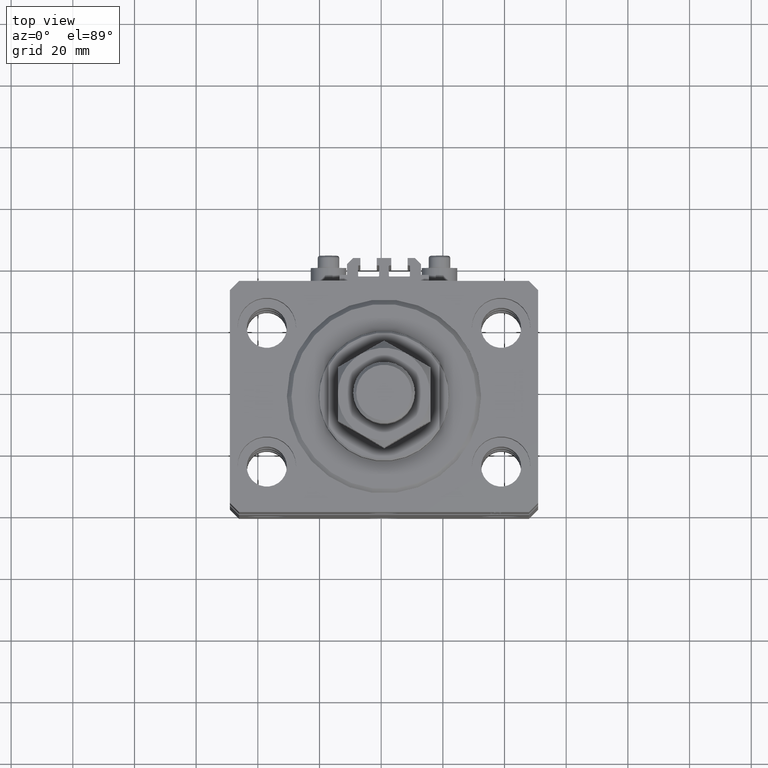
[diagram: clean part render]
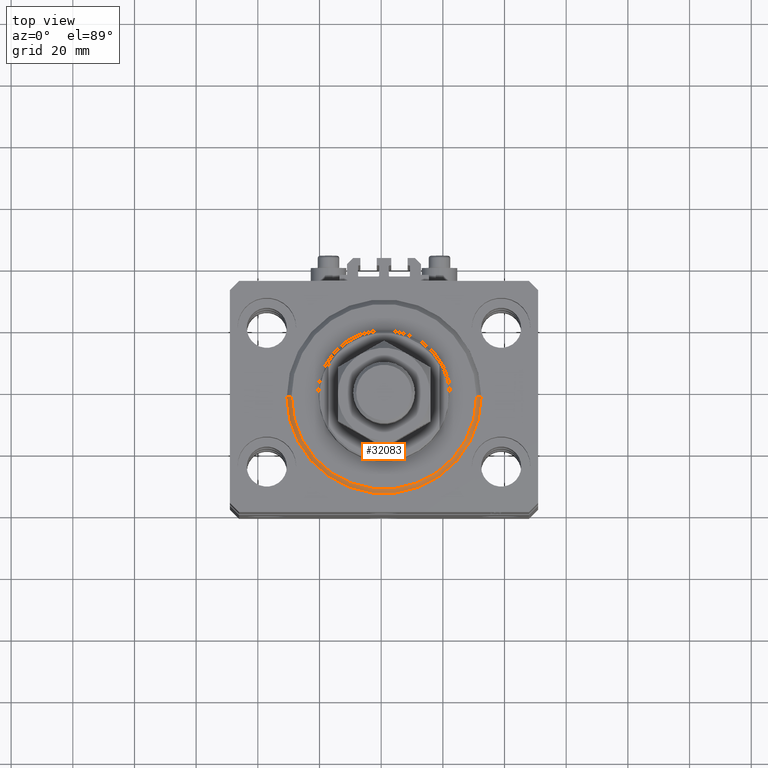
[diagram: same view with one face highlighted and labeled with its STEP entity id]
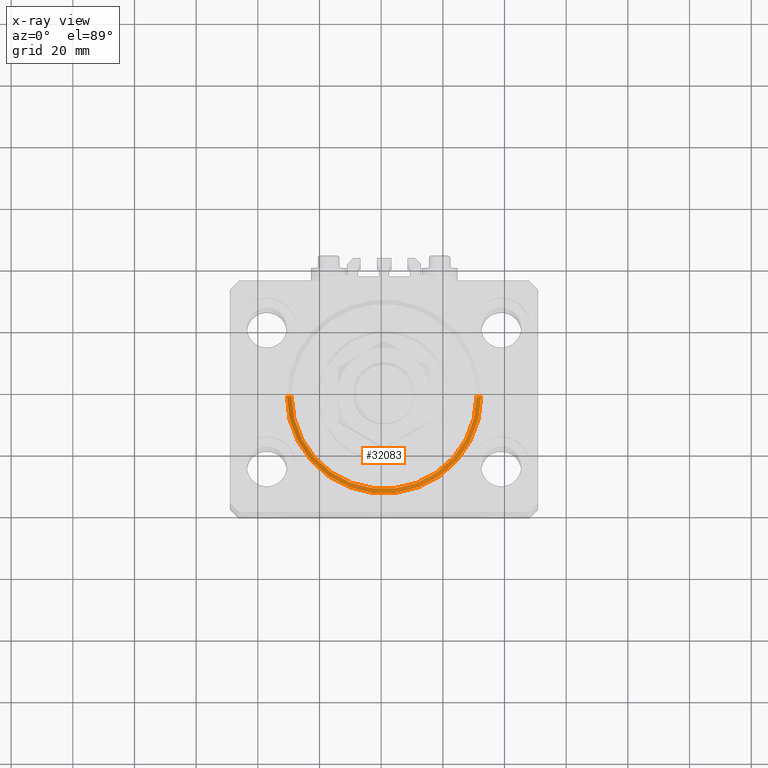
[diagram: x-ray of the same camera — body ghosted, the highlighted face saturated]
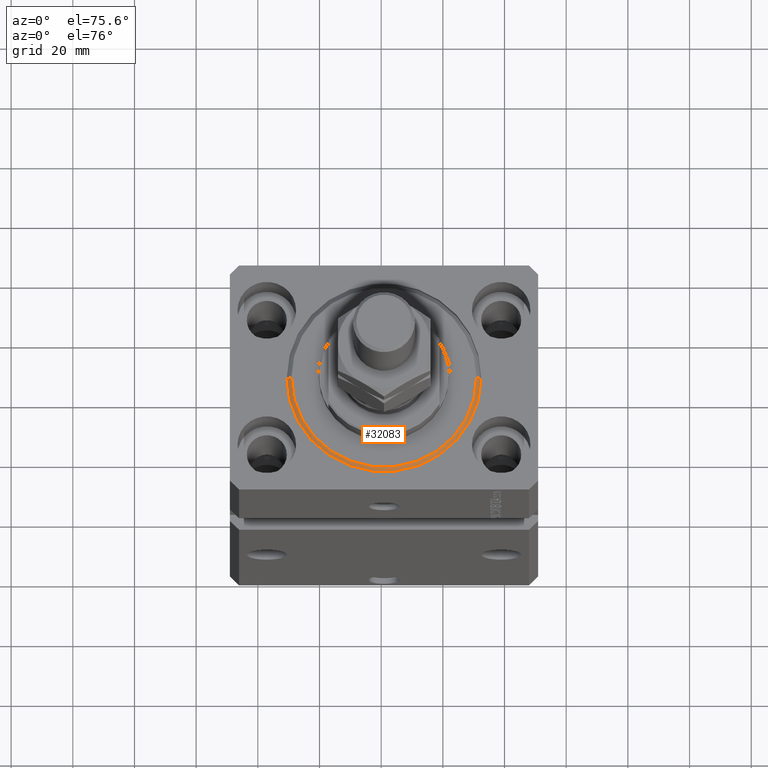
[diagram: same view with one face highlighted and labeled with its STEP entity id]
A machine part, top view. The second image highlights one B-rep face of the part: STEP entity #32083.
The next image is the same camera in x-ray: the body ghosted, the highlighted face saturated — about 0% of this face is hidden behind the body in this view.
A second angle (auxiliary view) of the same face is appended — the face is thin or edge-on in the first view.
In plain terms, the highlighted conical surface has half-angle 45 deg.
Its self-contained STEP definition (entity closure, byte-faithful):
#1279 = AXIS2_PLACEMENT_3D ( 'NONE', #4400, #38636, #8681 ) ;
#2304 = DIRECTION ( 'NONE',  ( -0.7071067811865491270, 8.659560562354952580E-17, 0.7071067811865459074 ) ) ;
#2740 = CONICAL_SURFACE ( 'NONE', #38934, 31.50000000000000000, 0.7853981633974506105 ) ;
#4274 = CARTESIAN_POINT ( 'NONE',  ( 0.000000000000000000, 0.000000000000000000, 0.000000000000000000 ) ) ;
#4400 = CARTESIAN_POINT ( 'NONE',  ( 0.000000000000000000, 0.000000000000000000, 1.500000000000001332 ) ) ;
#4764 = CARTESIAN_POINT ( 'NONE',  ( 31.50000000000000000, 0.000000000000000000, 1.500000000000001332 ) ) ;
#5102 = AXIS2_PLACEMENT_3D ( 'NONE', #4274, #38264, #19634 ) ;
#5302 = CIRCLE ( 'NONE', #1279, 31.50000000000000000 ) ;
#8553 = ORIENTED_EDGE ( 'NONE', *, *, #38650, .F. ) ;
#8681 = DIRECTION ( 'NONE',  ( 1.000000000000000000, 0.000000000000000000, 0.000000000000000000 ) ) ;
#8787 = CARTESIAN_POINT ( 'NONE',  ( 31.50000000000000000, 3.857637417314162689E-15, 1.500000000000001332 ) ) ;
#8798 = VERTEX_POINT ( 'NONE', #8787 ) ;
#9331 = CARTESIAN_POINT ( 'NONE',  ( -29.99999999999999289, 3.765788907378110539E-15, 0.000000000000000000 ) ) ;
#10128 = DIRECTION ( 'NONE',  ( 1.000000000000000000, 0.000000000000000000, 0.000000000000000000 ) ) ;
#10759 = VERTEX_POINT ( 'NONE', #9331 ) ;
#13487 = ORIENTED_EDGE ( 'NONE', *, *, #27131, .F. ) ;
#15570 = CIRCLE ( 'NONE', #5102, 29.99999999999999289 ) ;
#16360 = LINE ( 'NONE', #4764, #46775 ) ;
#18414 = CARTESIAN_POINT ( 'NONE',  ( -31.50000000000000000, 3.857637417314162689E-15, 1.500000000000001332 ) ) ;
#19634 = DIRECTION ( 'NONE',  ( 1.000000000000000000, 0.000000000000000000, 0.000000000000000000 ) ) ;
#20324 = CARTESIAN_POINT ( 'NONE',  ( -31.50000000000000000, 0.000000000000000000, 1.500000000000001332 ) ) ;
#24153 = EDGE_CURVE ( 'NONE', #26394, #8798, #16360, .T. ) ;
#24978 = DIRECTION ( 'NONE',  ( -0.000000000000000000, -0.000000000000000000, 1.000000000000000000 ) ) ;
#25942 = LINE ( 'NONE', #18414, #40319 ) ;
#26394 = VERTEX_POINT ( 'NONE', #28606 ) ;
#27131 = EDGE_CURVE ( 'NONE', #10759, #39232, #25942, .T. ) ;
#28606 = CARTESIAN_POINT ( 'NONE',  ( 29.99999999999999289, 0.000000000000000000, 0.000000000000000000 ) ) ;
#28993 = CARTESIAN_POINT ( 'NONE',  ( 0.000000000000000000, 0.000000000000000000, 1.500000000000001332 ) ) ;
#29508 = EDGE_LOOP ( 'NONE', ( #13487, #43449, #31621, #8553 ) ) ;
#30675 = EDGE_CURVE ( 'NONE', #26394, #10759, #15570, .T. ) ;
#31621 = ORIENTED_EDGE ( 'NONE', *, *, #24153, .T. ) ;
#32083 = ADVANCED_FACE ( 'NONE', ( #36549 ), #2740, .T. ) ;
#36549 = FACE_OUTER_BOUND ( 'NONE', #29508, .T. ) ;
#38264 = DIRECTION ( 'NONE',  ( -0.000000000000000000, -0.000000000000000000, -1.000000000000000000 ) ) ;
#38636 = DIRECTION ( 'NONE',  ( -0.000000000000000000, -0.000000000000000000, 1.000000000000000000 ) ) ;
#38650 = EDGE_CURVE ( 'NONE', #39232, #8798, #5302, .T. ) ;
#38934 = AXIS2_PLACEMENT_3D ( 'NONE', #28993, #24978, #10128 ) ;
#39232 = VERTEX_POINT ( 'NONE', #20324 ) ;
#40319 = VECTOR ( 'NONE', #2304, 1000.000000000000000 ) ;
#43449 = ORIENTED_EDGE ( 'NONE', *, *, #30675, .F. ) ;
#46775 = VECTOR ( 'NONE', #46797, 1000.000000000000000 ) ;
#46797 = DIRECTION ( 'NONE',  ( 0.7071067811865491270, 0.000000000000000000, 0.7071067811865459074 ) ) ;